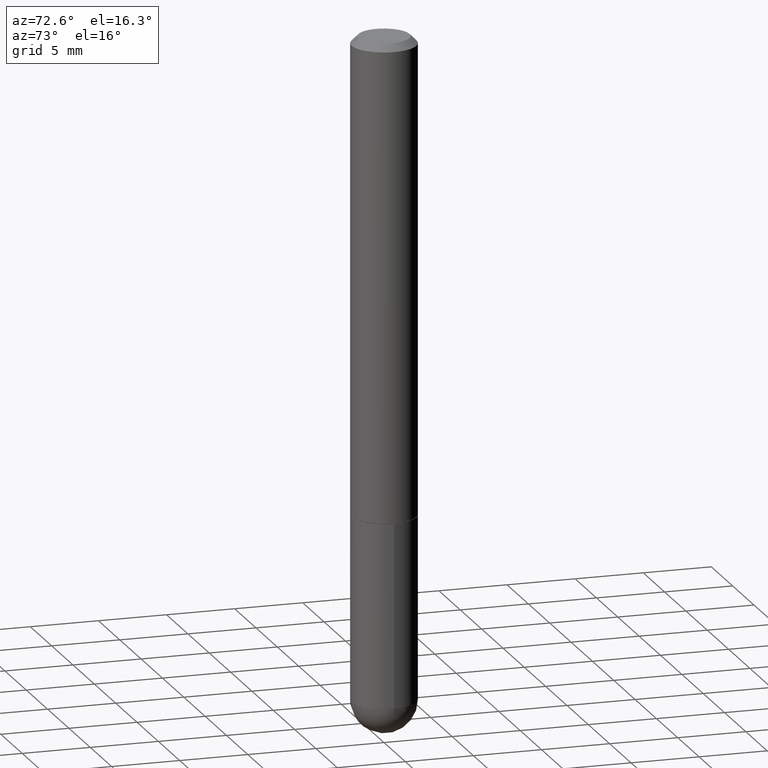
[diagram: clean part render]
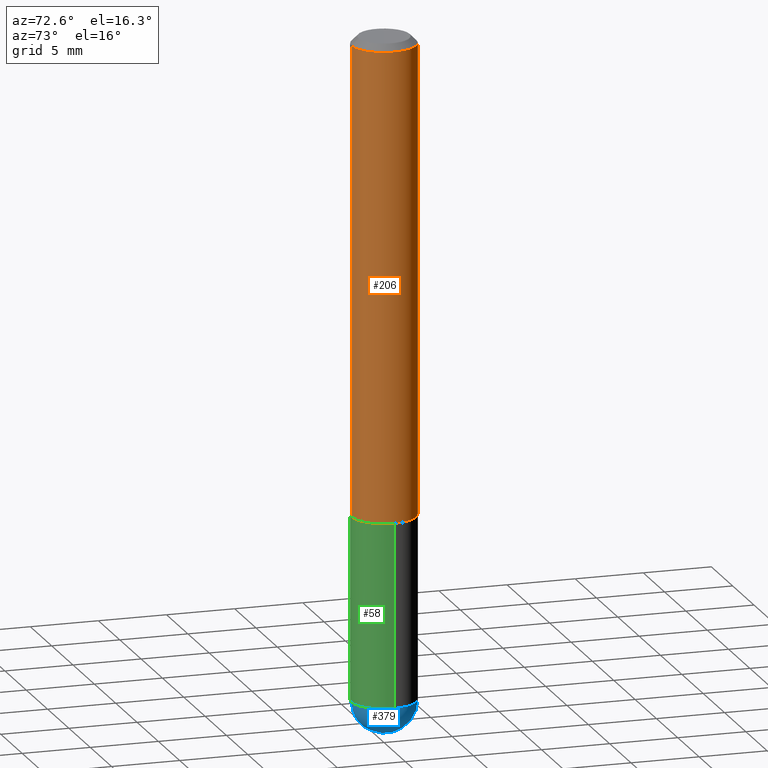
[diagram: same view with three faces highlighted in distinct colors, each labeled with its STEP entity id]
A machine part, auxiliary view with three faces highlighted in distinct colors.
Their STEP definitions:

[orange] entity #206 — the highlighted cylindrical surface (edge-blend (fillet) strip) has radius 2.3813 mm, axis along (-0, 0, 1).
#28 = DIRECTION ( 'NONE',  ( -6.982962677686266711E-15, -1.000000000000000000, 3.505871591869138487E-15 ) ) ;
#32 = CARTESIAN_POINT ( 'NONE',  ( 3.359151536206952494E-29, -4.798616580281532316E-15, -1.373999999999999888 ) ) ;
#33 = CARTESIAN_POINT ( 'NONE',  ( 6.546527510330878985E-16, 0.09374999999999991673, -0.02000000000000034736 ) ) ;
#35 = DIRECTION ( 'NONE',  ( -6.982962677686266711E-15, -1.000000000000000000, 2.913971193241874850E-15 ) ) ;
#38 = AXIS2_PLACEMENT_3D ( 'NONE', #32, #256, #35 ) ;
#63 = CARTESIAN_POINT ( 'NONE',  ( 4.889594666967911153E-31, -6.984885851938190023E-17, -0.02000000000000001776 ) ) ;
#67 = DIRECTION ( 'NONE',  ( -6.982962677686265922E-15, -1.000000000000000000, 3.492442925969091437E-15 ) ) ;
#71 = CARTESIAN_POINT ( 'NONE',  ( 6.661338147750944173E-16, 0.09375000000000009714, -3.274165243096026796E-16 ) ) ;
#79 = ORIENTED_EDGE ( 'NONE', *, *, #159, .F. ) ;
#92 = CARTESIAN_POINT ( 'NONE',  ( -6.431716872910804923E-16, -0.09375000000000005551, -0.01999999999999968817 ) ) ;
#96 = FACE_OUTER_BOUND ( 'NONE', #337, .T. ) ;
#100 = CIRCLE ( 'NONE', #292, 0.09374999999999998612 ) ;
#114 = VERTEX_POINT ( 'NONE', #315 ) ;
#159 = EDGE_CURVE ( 'NONE', #114, #167, #346, .T. ) ;
#167 = VERTEX_POINT ( 'NONE', #92 ) ;
#180 = CARTESIAN_POINT ( 'NONE',  ( -6.546527510330880958E-16, -0.09375000000000009714, 3.274165243096026796E-16 ) ) ;
#186 = DIRECTION ( 'NONE',  ( -2.444797333483953649E-29, 3.492442925969092226E-15, 1.000000000000000000 ) ) ;
#193 = EDGE_CURVE ( 'NONE', #167, #244, #100, .T. ) ;
#206 = ADVANCED_FACE ( 'NONE', ( #96 ), #356, .T. ) ;
#217 = EDGE_CURVE ( 'NONE', #114, #303, #355, .T. ) ;
#222 = DIRECTION ( 'NONE',  ( -2.444797333483953649E-29, 3.492442925969092620E-15, 1.000000000000000000 ) ) ;
#226 = DIRECTION ( 'NONE',  ( -2.444797333483953649E-29, 3.492442925969092226E-15, 1.000000000000000000 ) ) ;
#232 = EDGE_CURVE ( 'NONE', #303, #244, #352, .T. ) ;
#244 = VERTEX_POINT ( 'NONE', #33 ) ;
#256 = DIRECTION ( 'NONE',  ( -2.444797333483953649E-29, 3.492442925969092226E-15, 1.000000000000000000 ) ) ;
#267 = AXIS2_PLACEMENT_3D ( 'NONE', #354, #226, #67 ) ;
#269 = ORIENTED_EDGE ( 'NONE', *, *, #193, .F. ) ;
#279 = VECTOR ( 'NONE', #378, 39.37007874015748143 ) ;
#292 = AXIS2_PLACEMENT_3D ( 'NONE', #63, #186, #28 ) ;
#303 = VERTEX_POINT ( 'NONE', #410 ) ;
#313 = ORIENTED_EDGE ( 'NONE', *, *, #217, .T. ) ;
#315 = CARTESIAN_POINT ( 'NONE',  ( -6.546527510330552594E-16, -0.09375000000000499600, -1.373999999999999666 ) ) ;
#337 = EDGE_LOOP ( 'NONE', ( #313, #380, #269, #79 ) ) ;
#346 = LINE ( 'NONE', #180, #279 ) ;
#352 = LINE ( 'NONE', #71, #391 ) ;
#354 = CARTESIAN_POINT ( 'NONE',  ( 0.000000000000000000, 0.000000000000000000, 0.000000000000000000 ) ) ;
#355 = CIRCLE ( 'NONE', #38, 0.09375000000000019429 ) ;
#356 = CYLINDRICAL_SURFACE ( 'NONE', #267, 0.09375000000000009714 ) ;
#378 = DIRECTION ( 'NONE',  ( -2.444797333483953649E-29, 3.492442925969092620E-15, 1.000000000000000000 ) ) ;
#380 = ORIENTED_EDGE ( 'NONE', *, *, #232, .T. ) ;
#391 = VECTOR ( 'NONE', #222, 39.37007874015748143 ) ;
#410 = CARTESIAN_POINT ( 'NONE',  ( 6.661338147751117722E-16, 0.09374999999999537870, -1.374000000000000110 ) ) ;

[blue] entity #379 — the highlighted spherical surface has radius 2.3813 mm.
#3 = AXIS2_PLACEMENT_3D ( 'NONE', #318, #252, #277 ) ;
#25 = DIRECTION ( 'NONE',  ( -2.445468806185136597E-29, 3.491481338843145583E-15, 1.000000000000000000 ) ) ;
#31 = CIRCLE ( 'NONE', #3, 0.09375000000000001388 ) ;
#40 = VERTEX_POINT ( 'NONE', #53 ) ;
#43 = FACE_OUTER_BOUND ( 'NONE', #332, .T. ) ;
#44 = ORIENTED_EDGE ( 'NONE', *, *, #49, .F. ) ;
#45 = AXIS2_PLACEMENT_3D ( 'NONE', #402, #178, #310 ) ;
#49 = EDGE_CURVE ( 'NONE', #265, #363, #31, .T. ) ;
#50 = CARTESIAN_POINT ( 'NONE',  ( 6.546527510331332580E-16, 0.09374999999999322764, -1.906250000000000222 ) ) ;
#53 = CARTESIAN_POINT ( 'NONE',  ( 4.563826426436916486E-29, -7.451404513955337857E-15, -2.000000000000000444 ) ) ;
#60 = CARTESIAN_POINT ( 'NONE',  ( 4.661674911790416638E-29, -6.655636302169745441E-15, -1.906250000000000000 ) ) ;
#61 = EDGE_CURVE ( 'NONE', #40, #328, #359, .T. ) ;
#72 = DIRECTION ( 'NONE',  ( -7.105427357601001070E-15, -1.000000000000000000, 0.000000000000000000 ) ) ;
#81 = CARTESIAN_POINT ( 'NONE',  ( 4.330555133876530390E-29, -7.129818670309794948E-15, -1.906250000000000000 ) ) ;
#115 = CARTESIAN_POINT ( 'NONE',  ( 4.330555133876530390E-29, -7.129818670309794948E-15, -1.906250000000000000 ) ) ;
#123 = AXIS2_PLACEMENT_3D ( 'NONE', #115, #164, #271 ) ;
#136 = ORIENTED_EDGE ( 'NONE', *, *, #61, .T. ) ;
#138 = AXIS2_PLACEMENT_3D ( 'NONE', #60, #25, #155 ) ;
#155 = DIRECTION ( 'NONE',  ( 1.000000000000000000, -6.982962677686261189E-15, 0.000000000000000000 ) ) ;
#160 = CARTESIAN_POINT ( 'NONE',  ( -6.661338147750496494E-16, -0.09375000000000702216, -1.906249999999999556 ) ) ;
#164 = DIRECTION ( 'NONE',  ( -1.000000000000000000, 6.982962677686265133E-15, -4.883557194083112901E-29 ) ) ;
#174 = EDGE_CURVE ( 'NONE', #363, #328, #216, .T. ) ;
#178 = DIRECTION ( 'NONE',  ( 1.000000000000000000, -6.982962677686265922E-15, 4.883557194083112340E-29 ) ) ;
#199 = DIRECTION ( 'NONE',  ( -1.000000000000000000, 7.105427357601001070E-15, -4.926315508542082329E-29 ) ) ;
#216 = CIRCLE ( 'NONE', #138, 0.09375000000000001388 ) ;
#223 = AXIS2_PLACEMENT_3D ( 'NONE', #81, #199, #72 ) ;
#230 = SPHERICAL_SURFACE ( 'NONE', #123, 0.09375000000000026368 ) ;
#238 = CARTESIAN_POINT ( 'NONE',  ( 0.09375000000000001388, -6.382864322572621901E-15, -1.906250000000000000 ) ) ;
#252 = DIRECTION ( 'NONE',  ( -2.445468806185136597E-29, 3.491481338843145583E-15, 1.000000000000000000 ) ) ;
#265 = VERTEX_POINT ( 'NONE', #160 ) ;
#271 = DIRECTION ( 'NONE',  ( 6.982962677686265133E-15, 1.000000000000000000, -2.913971193241872483E-15 ) ) ;
#276 = ORIENTED_EDGE ( 'NONE', *, *, #388, .F. ) ;
#277 = DIRECTION ( 'NONE',  ( 1.000000000000000000, -6.982962677686261189E-15, 0.000000000000000000 ) ) ;
#310 = DIRECTION ( 'NONE',  ( 6.982962677686265133E-15, 1.000000000000000000, 0.000000000000000000 ) ) ;
#316 = CIRCLE ( 'NONE', #223, 0.09375000000000026368 ) ;
#318 = CARTESIAN_POINT ( 'NONE',  ( 4.661674911790416638E-29, -6.655636302169745441E-15, -1.906250000000000000 ) ) ;
#328 = VERTEX_POINT ( 'NONE', #50 ) ;
#332 = EDGE_LOOP ( 'NONE', ( #276, #136, #392, #44 ) ) ;
#359 = CIRCLE ( 'NONE', #45, 0.09375000000000026368 ) ;
#363 = VERTEX_POINT ( 'NONE', #238 ) ;
#379 = ADVANCED_FACE ( 'NONE', ( #43 ), #230, .T. ) ;
#388 = EDGE_CURVE ( 'NONE', #40, #265, #316, .T. ) ;
#392 = ORIENTED_EDGE ( 'NONE', *, *, #174, .F. ) ;
#402 = CARTESIAN_POINT ( 'NONE',  ( 4.330555133876530390E-29, -7.129818670309794948E-15, -1.906250000000000000 ) ) ;

[green] entity #58 — the highlighted cylindrical surface (edge-blend (fillet) strip) has radius 2.3813 mm, axis along (-0, 0, 1).
#3 = AXIS2_PLACEMENT_3D ( 'NONE', #318, #252, #277 ) ;
#11 = EDGE_CURVE ( 'NONE', #240, #265, #228, .T. ) ;
#24 = AXIS2_PLACEMENT_3D ( 'NONE', #221, #133, #353 ) ;
#31 = CIRCLE ( 'NONE', #3, 0.09375000000000001388 ) ;
#49 = EDGE_CURVE ( 'NONE', #265, #363, #31, .T. ) ;
#55 = CARTESIAN_POINT ( 'NONE',  ( 0.000000000000000000, 0.000000000000000000, 0.000000000000000000 ) ) ;
#57 = DIRECTION ( 'NONE',  ( -2.445468806185136597E-29, 3.491481338843145583E-15, 1.000000000000000000 ) ) ;
#58 = ADVANCED_FACE ( 'NONE', ( #350 ), #381, .T. ) ;
#65 = DIRECTION ( 'NONE',  ( -2.445468806185136877E-29, 3.491481338843145188E-15, 1.000000000000000000 ) ) ;
#75 = ORIENTED_EDGE ( 'NONE', *, *, #241, .T. ) ;
#87 = DIRECTION ( 'NONE',  ( 1.000000000000000000, -6.982962677686261189E-15, 0.000000000000000000 ) ) ;
#102 = CARTESIAN_POINT ( 'NONE',  ( -0.09375000000000001388, -5.062077756764441261E-15, -1.375000000000000000 ) ) ;
#117 = AXIS2_PLACEMENT_3D ( 'NONE', #55, #57, #183 ) ;
#119 = ORIENTED_EDGE ( 'NONE', *, *, #311, .F. ) ;
#132 = LINE ( 'NONE', #383, #239 ) ;
#133 = DIRECTION ( 'NONE',  ( -2.445468806185136597E-29, 3.491481338843145583E-15, 1.000000000000000000 ) ) ;
#146 = ORIENTED_EDGE ( 'NONE', *, *, #49, .T. ) ;
#157 = DIRECTION ( 'NONE',  ( -2.445468806185136877E-29, 3.491481338843145188E-15, 1.000000000000000000 ) ) ;
#160 = CARTESIAN_POINT ( 'NONE',  ( -6.661338147750496494E-16, -0.09375000000000702216, -1.906249999999999556 ) ) ;
#165 = ORIENTED_EDGE ( 'NONE', *, *, #283, .F. ) ;
#183 = DIRECTION ( 'NONE',  ( 1.000000000000000000, -6.982962677686265922E-15, 4.876176775795935793E-29 ) ) ;
#184 = AXIS2_PLACEMENT_3D ( 'NONE', #372, #285, #87 ) ;
#188 = CARTESIAN_POINT ( 'NONE',  ( -0.09375000000000001388, 6.661338147750940229E-16, -4.611501647113973995E-30 ) ) ;
#196 = CARTESIAN_POINT ( 'NONE',  ( 0.09375000000000001388, -5.455439591942412434E-15, -1.375000000000000000 ) ) ;
#221 = CARTESIAN_POINT ( 'NONE',  ( 3.362519608504562260E-29, -4.800786840909324930E-15, -1.375000000000000000 ) ) ;
#228 = CIRCLE ( 'NONE', #184, 0.09375000000000001388 ) ;
#229 = VECTOR ( 'NONE', #65, 39.37007874015748143 ) ;
#237 = VERTEX_POINT ( 'NONE', #102 ) ;
#238 = CARTESIAN_POINT ( 'NONE',  ( 0.09375000000000001388, -6.382864322572621901E-15, -1.906250000000000000 ) ) ;
#239 = VECTOR ( 'NONE', #157, 39.37007874015748143 ) ;
#240 = VERTEX_POINT ( 'NONE', #387 ) ;
#241 = EDGE_CURVE ( 'NONE', #363, #401, #132, .T. ) ;
#252 = DIRECTION ( 'NONE',  ( -2.445468806185136597E-29, 3.491481338843145583E-15, 1.000000000000000000 ) ) ;
#258 = ORIENTED_EDGE ( 'NONE', *, *, #11, .T. ) ;
#265 = VERTEX_POINT ( 'NONE', #160 ) ;
#277 = DIRECTION ( 'NONE',  ( 1.000000000000000000, -6.982962677686261189E-15, 0.000000000000000000 ) ) ;
#283 = EDGE_CURVE ( 'NONE', #237, #401, #375, .T. ) ;
#285 = DIRECTION ( 'NONE',  ( -2.445468806185136597E-29, 3.491481338843145583E-15, 1.000000000000000000 ) ) ;
#311 = EDGE_CURVE ( 'NONE', #240, #237, #385, .T. ) ;
#318 = CARTESIAN_POINT ( 'NONE',  ( 4.661674911790416638E-29, -6.655636302169745441E-15, -1.906250000000000000 ) ) ;
#338 = EDGE_LOOP ( 'NONE', ( #119, #258, #146, #75, #165 ) ) ;
#350 = FACE_OUTER_BOUND ( 'NONE', #338, .T. ) ;
#353 = DIRECTION ( 'NONE',  ( 1.000000000000000000, -6.982962677686261189E-15, 0.000000000000000000 ) ) ;
#363 = VERTEX_POINT ( 'NONE', #238 ) ;
#372 = CARTESIAN_POINT ( 'NONE',  ( 4.661674911790416638E-29, -6.655636302169745441E-15, -1.906250000000000000 ) ) ;
#375 = CIRCLE ( 'NONE', #24, 0.09375000000000001388 ) ;
#381 = CYLINDRICAL_SURFACE ( 'NONE', #117, 0.09375000000000001388 ) ;
#383 = CARTESIAN_POINT ( 'NONE',  ( 0.09375000000000001388, -6.546527510330875041E-16, 4.571415727308690506E-30 ) ) ;
#385 = LINE ( 'NONE', #188, #229 ) ;
#387 = CARTESIAN_POINT ( 'NONE',  ( -0.09375000000000001388, -5.062077756764441261E-15, -1.906250000000000000 ) ) ;
#401 = VERTEX_POINT ( 'NONE', #196 ) ;